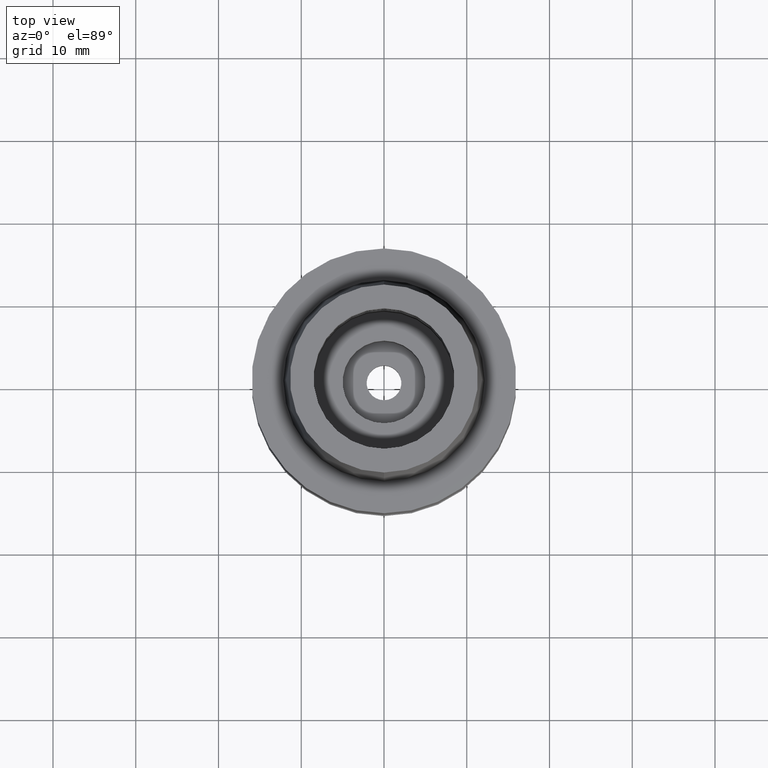
[diagram: clean part render]
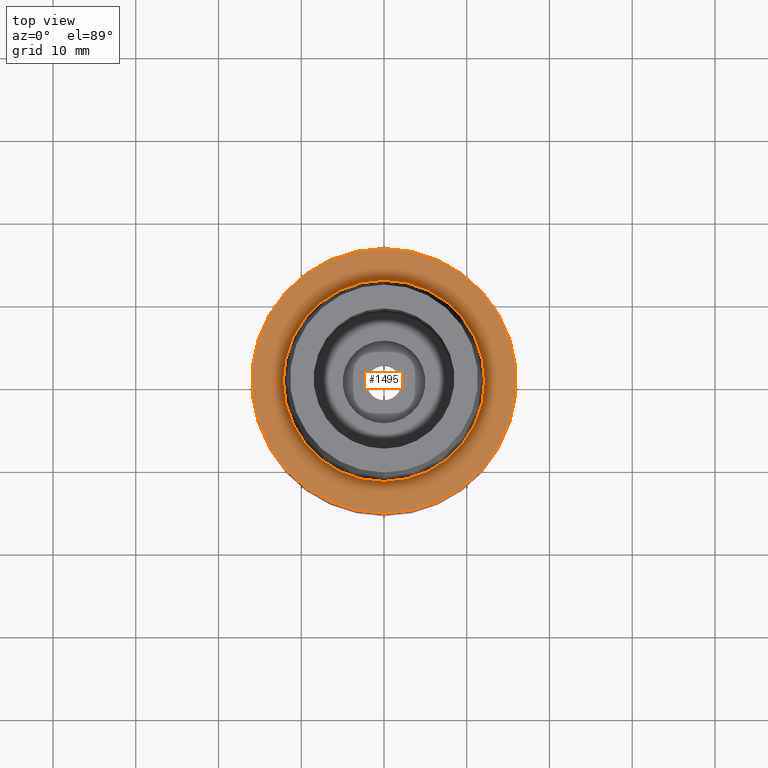
[diagram: same view with one face highlighted and labeled with its STEP entity id]
A machine part, top view. The second image highlights one B-rep face of the part: STEP entity #1495.
In plain terms, the highlighted planar face has unit normal (0, 0, -1).
Its self-contained STEP definition (entity closure, byte-faithful):
#688=CARTESIAN_POINT('',(0.E0,1.467126865379E-14,4.263256414561E-14));
#689=DIRECTION('',(0.E0,0.E0,-1.E0));
#690=DIRECTION('',(0.E0,-1.E0,0.E0));
#691=AXIS2_PLACEMENT_3D('',#688,#689,#690);
#696=CARTESIAN_POINT('',(0.E0,1.467126865379E-14,4.263256414561E-14));
#697=DIRECTION('',(0.E0,0.E0,-1.E0));
#698=DIRECTION('',(0.E0,1.E0,0.E0));
#699=AXIS2_PLACEMENT_3D('',#696,#697,#698);
#704=CARTESIAN_POINT('',(0.E0,1.322618543079E-14,1.989519660128E-13));
#705=DIRECTION('',(0.E0,0.E0,1.E0));
#706=DIRECTION('',(0.E0,-1.E0,0.E0));
#707=AXIS2_PLACEMENT_3D('',#704,#705,#706);
#712=CARTESIAN_POINT('',(0.E0,1.322618543079E-14,1.989519660128E-13));
#713=DIRECTION('',(0.E0,0.E0,1.E0));
#714=DIRECTION('',(0.E0,1.E0,0.E0));
#715=AXIS2_PLACEMENT_3D('',#712,#713,#714);
#721=CARTESIAN_POINT('',(0.E0,1.215999970739E1,1.314504061156E-13));
#723=VERTEX_POINT('',#721);
#724=CARTESIAN_POINT('',(0.E0,-1.215999970739E1,1.989519660128E-13));
#725=VERTEX_POINT('',#724);
#828=CARTESIAN_POINT('',(0.E0,1.6E1,2.605323364454E-14));
#829=VERTEX_POINT('',#828);
#830=CARTESIAN_POINT('',(0.E0,-1.6E1,4.263256414561E-14));
#831=VERTEX_POINT('',#830);
#1482=CARTESIAN_POINT('',(0.E0,1.224646799147E-14,0.E0));
#1483=DIRECTION('',(0.E0,0.E0,-1.E0));
#1484=DIRECTION('',(0.E0,-1.E0,0.E0));
#1485=AXIS2_PLACEMENT_3D('',#1482,#1483,#1484);
#1486=PLANE('',#1485);
#1487=ORIENTED_EDGE('',*,*,#1461,.T.);
#1488=ORIENTED_EDGE('',*,*,#1477,.T.);
#1489=EDGE_LOOP('',(#1487,#1488));
#1490=FACE_OUTER_BOUND('',#1489,.F.);
#1491=ORIENTED_EDGE('',*,*,#839,.T.);
#1492=ORIENTED_EDGE('',*,*,#857,.T.);
#1493=EDGE_LOOP('',(#1491,#1492));
#1494=FACE_BOUND('',#1493,.F.);
#692=CIRCLE('',#691,1.6E1);
#700=CIRCLE('',#699,1.6E1);
#708=CIRCLE('',#707,1.215999970739E1);
#716=CIRCLE('',#715,1.215999970739E1);
#839=EDGE_CURVE('',#725,#723,#708,.T.);
#857=EDGE_CURVE('',#723,#725,#716,.T.);
#1461=EDGE_CURVE('',#831,#829,#692,.T.);
#1477=EDGE_CURVE('',#829,#831,#700,.T.);
#1495=ADVANCED_FACE('',(#1490,#1494),#1486,.F.);